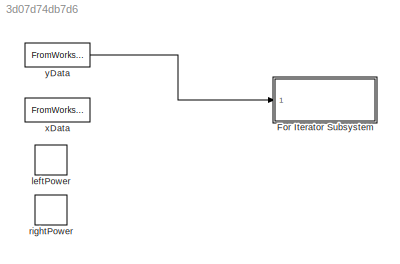
MODEL slx_3d07d74db7d6
KIND model
CONFIG AbsTol = auto
CONFIG FixedStep = 10
CONFIG MaxStep = auto
CONFIG MinStep = auto
CONFIG RelTol = 1e-3
CONFIG SampleTimeConstraint = Unconstrained
CONFIG Solver = VariableStepAuto
CONFIG SolverMode = Auto
CONFIG SolverName = VariableStepAuto
CONFIG StartTime = 0.0
CONFIG StopTime = 1000
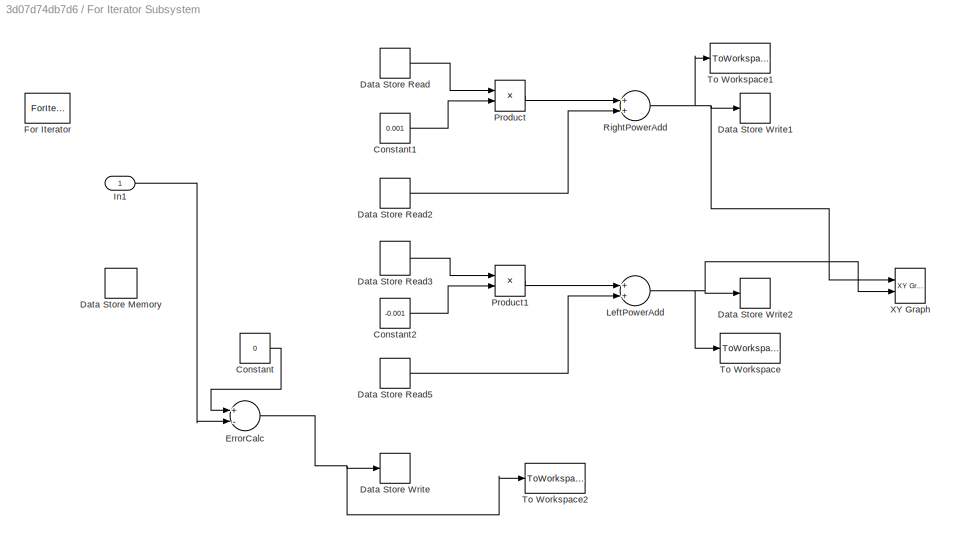
BLOCK [SubSystem] For Iterator Subsystem
  Ports = [1]
  RequestExecContextInheritance = off
  TreatAsAtomicUnit = on
  Variant = off
BLOCK [Constant] For Iterator Subsystem/Constant
  Value = 0
BLOCK [Constant] For Iterator Subsystem/Constant1
  Value = 0.001
BLOCK [Constant] For Iterator Subsystem/Constant2
  Value = -0.001
BLOCK [DataStoreMemory] For Iterator Subsystem/Data Store Memory
  DataStoreName = Error
  ReadBeforeWriteMsg = warning
  WriteAfterReadMsg = warning
  WriteAfterWriteMsg = warning
BLOCK [DataStoreRead] For Iterator Subsystem/Data Store Read
  DataStoreName = Error
  Ports = [0, 1]
BLOCK [DataStoreRead] For Iterator Subsystem/Data Store Read2
  DataStoreName = rightPower
  Ports = [0, 1]
BLOCK [DataStoreRead] For Iterator Subsystem/Data Store Read3
  DataStoreName = Error
  Ports = [0, 1]
BLOCK [DataStoreRead] For Iterator Subsystem/Data Store Read5
  DataStoreName = leftPower
  Ports = [0, 1]
BLOCK [DataStoreWrite] For Iterator Subsystem/Data Store Write
  DataStoreName = Error
  Ports = [1]
BLOCK [DataStoreWrite] For Iterator Subsystem/Data Store Write1
  DataStoreName = rightPower
  Ports = [1]
BLOCK [DataStoreWrite] For Iterator Subsystem/Data Store Write2
  DataStoreName = leftPower
  Ports = [1]
BLOCK [Sum] For Iterator Subsystem/ErrorCalc
  InputSameDT = off
  Inputs = +-
  OutDataTypeStr = Inherit: Inherit via internal rule
  Ports = [2, 1]
  SaturateOnIntegerOverflow = off
BLOCK [ForIterator] For Iterator Subsystem/For Iterator
  IterationLimit = 1000
  Ports = [0, 1]
BLOCK [Inport] For Iterator Subsystem/In1
  IconDisplay = Port number
BLOCK [Sum] For Iterator Subsystem/LeftPowerAdd 
  InputSameDT = off
  OutDataTypeStr = Inherit: Inherit via internal rule
  Ports = [2, 1]
  SaturateOnIntegerOverflow = off
BLOCK [Product] For Iterator Subsystem/Product
  InputSameDT = off
  OutDataTypeStr = Inherit: Inherit via internal rule
  Ports = [2, 1]
  RndMeth = Floor
  SaturateOnIntegerOverflow = off
BLOCK [Product] For Iterator Subsystem/Product1
  InputSameDT = off
  OutDataTypeStr = Inherit: Inherit via internal rule
  Ports = [2, 1]
  RndMeth = Floor
  SaturateOnIntegerOverflow = off
BLOCK [Sum] For Iterator Subsystem/RightPowerAdd 
  InputSameDT = off
  OutDataTypeStr = Inherit: Inherit via internal rule
  Ports = [2, 1]
  SaturateOnIntegerOverflow = off
BLOCK [ToWorkspace] For Iterator Subsystem/To Workspace
  FixptAsFi = on
  MaxDataPoints = inf
  Ports = [1]
  SampleTime = -1
  Save2DSignal = 3-D array (concatenate along third dimension)
  SaveFormat = Timeseries
  VariableName = leftPower
BLOCK [ToWorkspace] For Iterator Subsystem/To Workspace1
  FixptAsFi = on
  MaxDataPoints = inf
  Ports = [1]
  SampleTime = -1
  Save2DSignal = 3-D array (concatenate along third dimension)
  SaveFormat = Timeseries
  VariableName = rightPower
BLOCK [ToWorkspace] For Iterator Subsystem/To Workspace2
  FixptAsFi = on
  MaxDataPoints = inf
  Ports = [1]
  SampleTime = -1
  Save2DSignal = 3-D array (concatenate along third dimension)
  SaveFormat = Timeseries
  VariableName = Error
BLOCK [Reference] For Iterator Subsystem/XY Graph  REF=simulink/Sinks/XY Graph
  Ports = [2]
  SourceBlock = simulink/Sinks/XY Graph
  SourceType = XY scope.
BLOCK [DataStoreMemory] leftPower 
  DataStoreName = leftPower
  InitialValue = 0.5
  ReadBeforeWriteMsg = warning
  WriteAfterReadMsg = warning
  WriteAfterWriteMsg = warning
BLOCK [DataStoreMemory] rightPower 
  DataStoreName = rightPower
  InitialValue = 0.5
  ReadBeforeWriteMsg = warning
  WriteAfterReadMsg = warning
  WriteAfterWriteMsg = warning
BLOCK [FromWorkspace] xData 
  SampleTime = 0
  VariableName = xTs
  ZeroCross = on
BLOCK [FromWorkspace] yData
  SampleTime = 0
  VariableName = yTs
  ZeroCross = on
LINE For Iterator Subsystem/Constant1:1 -> For Iterator Subsystem/Product:2
LINE For Iterator Subsystem/Constant2:1 -> For Iterator Subsystem/Product1:2
LINE For Iterator Subsystem/Constant:1 -> For Iterator Subsystem/ErrorCalc:1
LINE For Iterator Subsystem/Data Store Read2:1 -> For Iterator Subsystem/RightPowerAdd :2
LINE For Iterator Subsystem/Data Store Read3:1 -> For Iterator Subsystem/Product1:1
LINE For Iterator Subsystem/Data Store Read5:1 -> For Iterator Subsystem/LeftPowerAdd :2
LINE For Iterator Subsystem/Data Store Read:1 -> For Iterator Subsystem/Product:1
NET For Iterator Subsystem/ErrorCalc:1 -> For Iterator Subsystem/Data Store Write:1, For Iterator Subsystem/To Workspace2:1
LINE For Iterator Subsystem/In1:1 -> For Iterator Subsystem/ErrorCalc:2
NET For Iterator Subsystem/LeftPowerAdd :1 -> For Iterator Subsystem/Data Store Write2:1, For Iterator Subsystem/To Workspace:1, For Iterator Subsystem/XY Graph:2
LINE For Iterator Subsystem/Product1:1 -> For Iterator Subsystem/LeftPowerAdd :1
LINE For Iterator Subsystem/Product:1 -> For Iterator Subsystem/RightPowerAdd :1
NET For Iterator Subsystem/RightPowerAdd :1 -> For Iterator Subsystem/Data Store Write1:1, For Iterator Subsystem/To Workspace1:1, For Iterator Subsystem/XY Graph:1
LINE yData:1 -> For Iterator Subsystem:1
note: NET lines group one-source signal fan-out (src -> all destinations, sorted); 1:1 wires keep LINE
